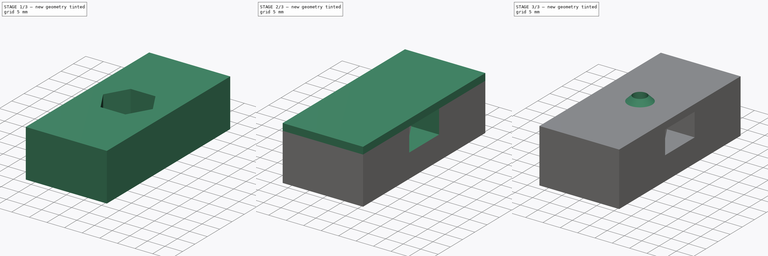
[diagram: build sequence overview — one tinted view per stage of 3, left to right]
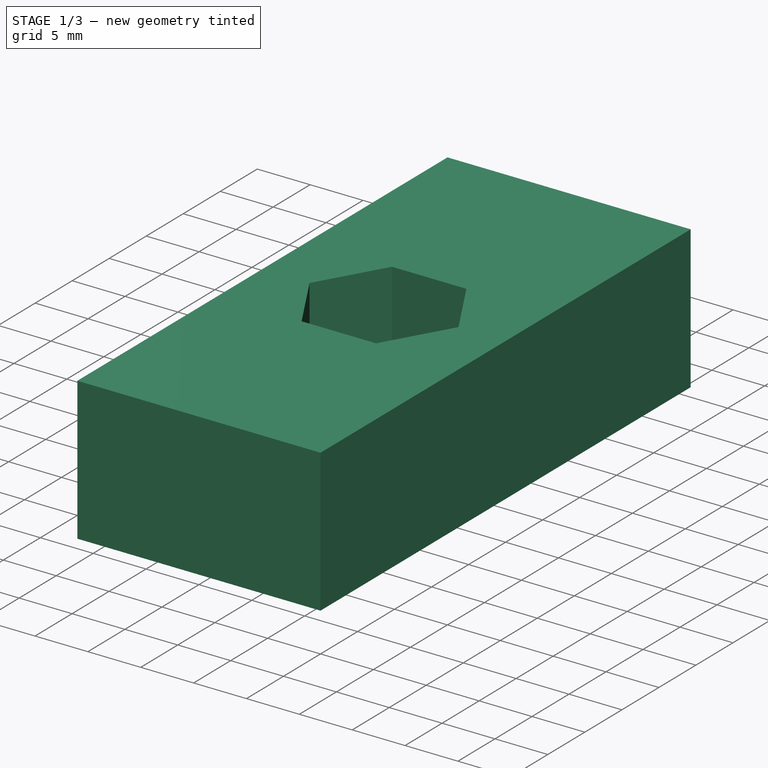
[diagram: stage 1 of 3 — iso view after this stage's code; geometry added in this stage tinted green]
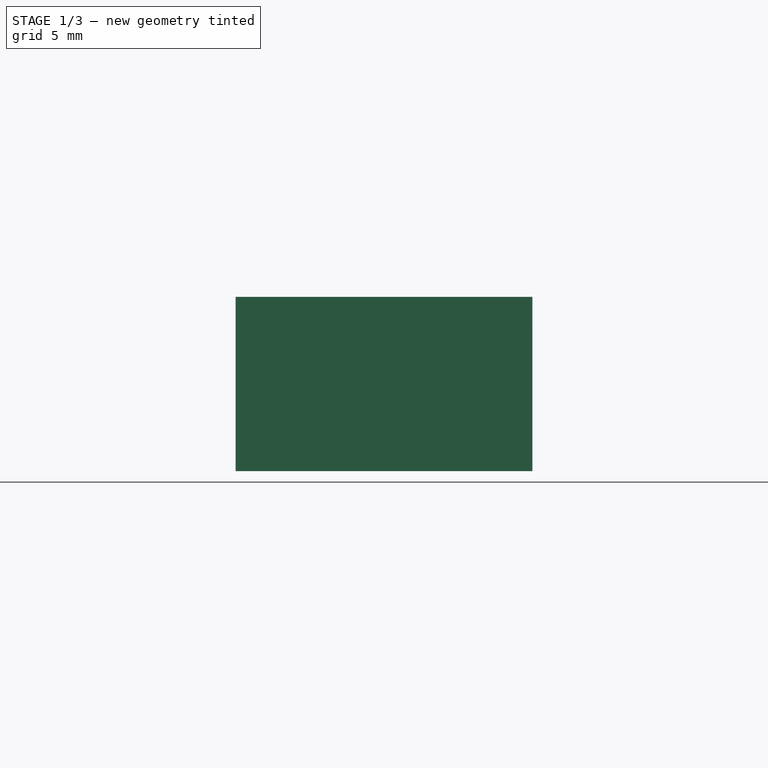
[diagram: stage 1 of 3 — front view after this stage's code; geometry added in this stage tinted green]
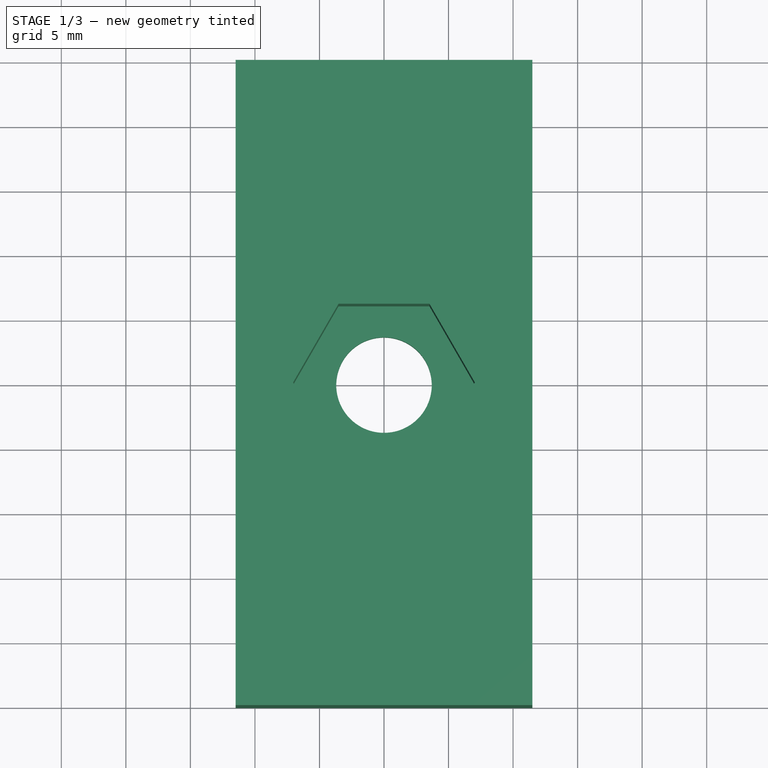
[diagram: stage 1 of 3 — top view after this stage's code; geometry added in this stage tinted green]
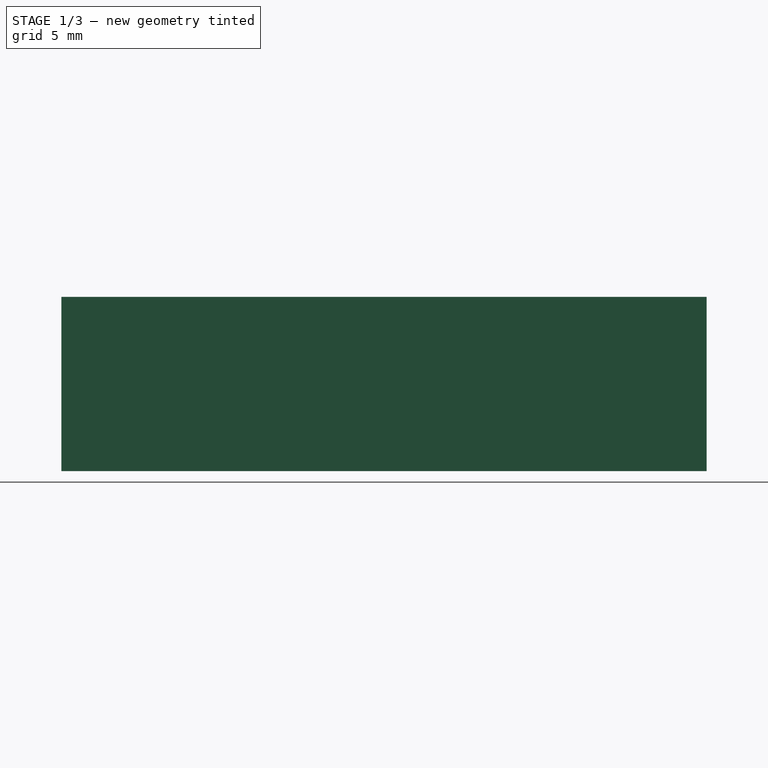
[diagram: stage 1 of 3 — right view after this stage's code; geometry added in this stage tinted green]
FCSTD DOCUMENT  (FreeCAD 0.15R4671 (Git))
Label: boxmount
License: All rights reserved
LicenseURL: http://en.wikipedia.org/wiki/All_rights_reserved
objects: Sketcher::SketchObject×8, PartDesign::Pocket×4, PartDesign::Pad×2, PartDesign::Revolution×1, PartDesign::Groove×1
note: 24 computed .brp shape members not serialized (recipe doc carries the construction recipe); baked Part::Feature solids carry a one-line shape summary decoded from their .brp

FEATURE [Sketcher::SketchObject] Sketch
  sketch-geometry (4):
    g0: LineSegment StartX=-11.5 StartY=25 StartZ=0 EndX=11.5 EndY=25 EndZ=0
    g1: LineSegment StartX=11.5 StartY=25 StartZ=0 EndX=11.5 EndY=-25 EndZ=0
    g2: LineSegment StartX=11.5 StartY=-25 StartZ=0 EndX=-11.5 EndY=-25 EndZ=0
    g3: LineSegment StartX=-11.5 StartY=-25 StartZ=0 EndX=-11.5 EndY=25 EndZ=0
  constraints (11):
    c: Coincident(g0,g1)
    c: Coincident(g1,g2)
    c: Coincident(g2,g3)
    c: Coincident(g3,g0)
    c: Horizontal(g0)
    c: Horizontal(g2)
    c: Vertical(g1)
    c: Vertical(g3)
    c: Symmetric(g0,g1,g-1)
    c: DistanceX(g0) = 23
    c: DistanceY(g1) = -50
FEATURE [PartDesign::Pad] Pad
  Length = 13.5
  Length2 = 100
  Sketch = -> Sketch
  Type = 0
FEATURE [Sketcher::SketchObject] Sketch001
  Placement = pos=(0,0,13.5) rot=(0,0,1;0rad)
  Support = -> Pad [Face6]
  sketch-geometry (1):
    g0: Circle CenterX=0 CenterY=0 CenterZ=0 NormalX=0 NormalY=0 NormalZ=1 Radius=3.7
  constraints (2):
    c: Coincident(g0,g-1)
    c: Radius(g0) = 3.7
FEATURE [PartDesign::Pocket] Pocket
  Length = 5
  Sketch = -> Sketch001
  Type = 1
FEATURE [Sketcher::SketchObject] Sketch002
  Placement = pos=(0,0,13.5) rot=(0,0,1;0rad)
  Support = -> Pocket [Face5]
  sketch-geometry (7):
    g0: LineSegment StartX=3.52184 StartY=-6.1 StartZ=0 EndX=7.04367 EndY=1e-12 EndZ=0
    g1: LineSegment StartX=7.04367 StartY=1e-12 StartZ=0 EndX=3.52184 EndY=6.1 EndZ=0
    g2: LineSegment StartX=3.52184 StartY=6.1 StartZ=0 EndX=-3.52184 EndY=6.1 EndZ=0
    g3: LineSegment StartX=-3.52184 StartY=6.1 StartZ=0 EndX=-7.04367 EndY=1e-12 EndZ=0
    g4: LineSegment StartX=-7.04367 StartY=1e-12 StartZ=0 EndX=-3.52184 EndY=-6.1 EndZ=0
    g5: LineSegment StartX=-3.52184 StartY=-6.1 StartZ=0 EndX=3.52184 EndY=-6.1 EndZ=0
    g6: Circle [constr] CenterX=0 CenterY=0 CenterZ=0 NormalX=0 NormalY=0 NormalZ=1 Radius=7.04367
  constraints (17):
    c: Coincident(g0,g1)
    c: Coincident(g1,g2)
    c: Coincident(g2,g3)
    c: Coincident(g3,g4)
    c: Coincident(g4,g5)
    c: Coincident(g5,g0)
    c: Equal(g0, g1-g5) x5
    c: PointOnObject(g0,g6)
    c: PointOnObject(g1,g6)
    c: PointOnObject(g2,g6)
    c: PointOnObject(g3,g6)
    c: PointOnObject(g4,g6)
    c: PointOnObject(g5,g6)
    c: Coincident(g3,g-1)
    c: Coincident(g6,g-1)
    c: Horizontal(g2)
    c: DistanceY(g2,g4) = -12.2
FEATURE [PartDesign::Pocket] Pocket001
  Length = 11.5
  Sketch = -> Sketch002
  Type = 0
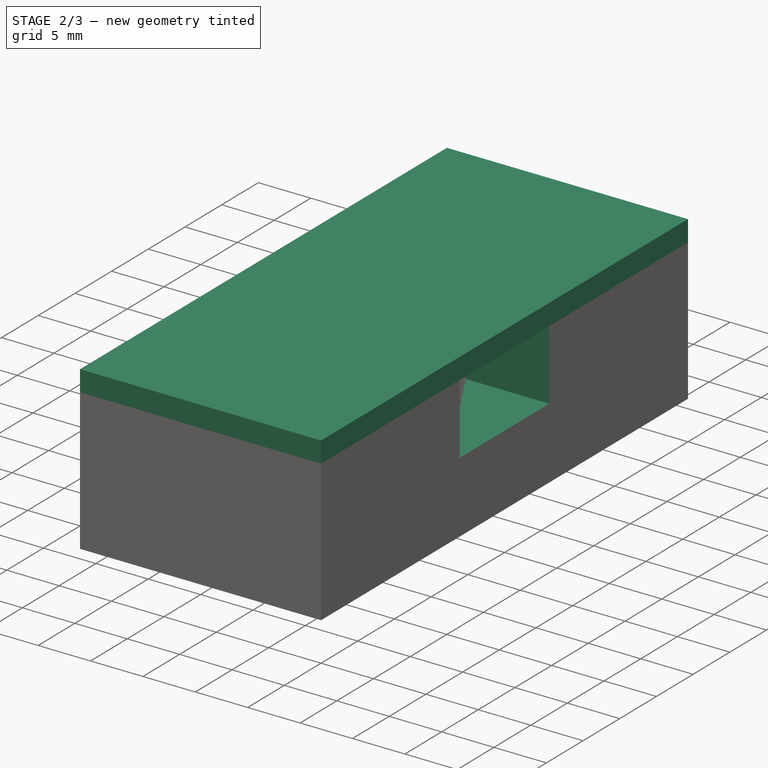
[diagram: stage 2 of 3 — iso view after this stage's code; geometry added in this stage tinted green]
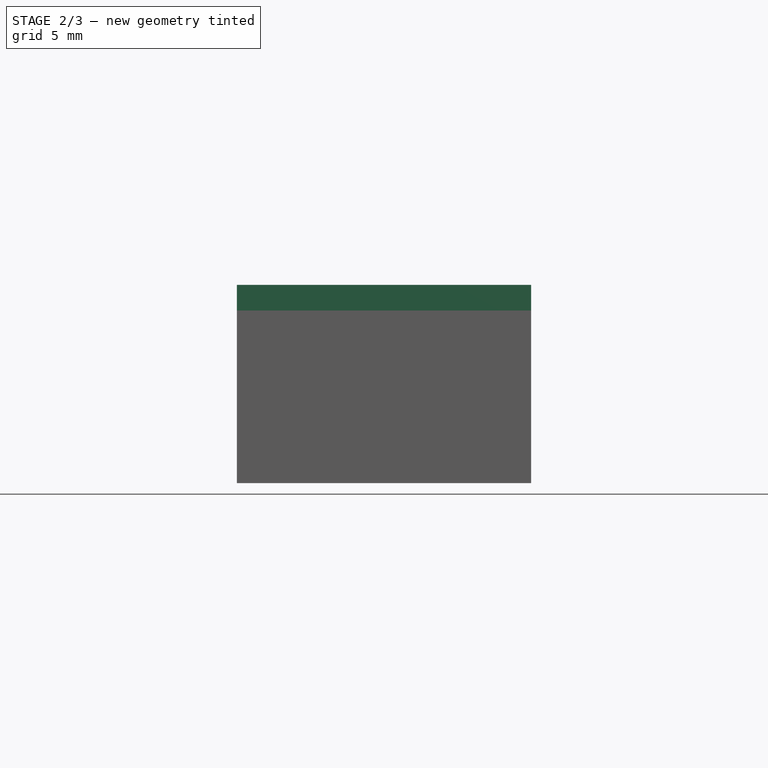
[diagram: stage 2 of 3 — front view after this stage's code; geometry added in this stage tinted green]
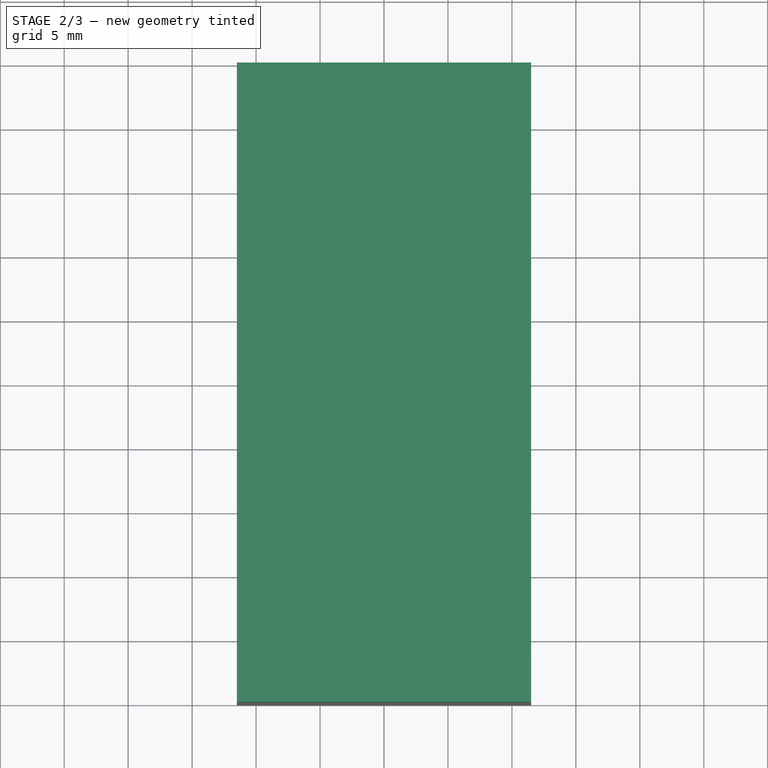
[diagram: stage 2 of 3 — top view after this stage's code; geometry added in this stage tinted green]
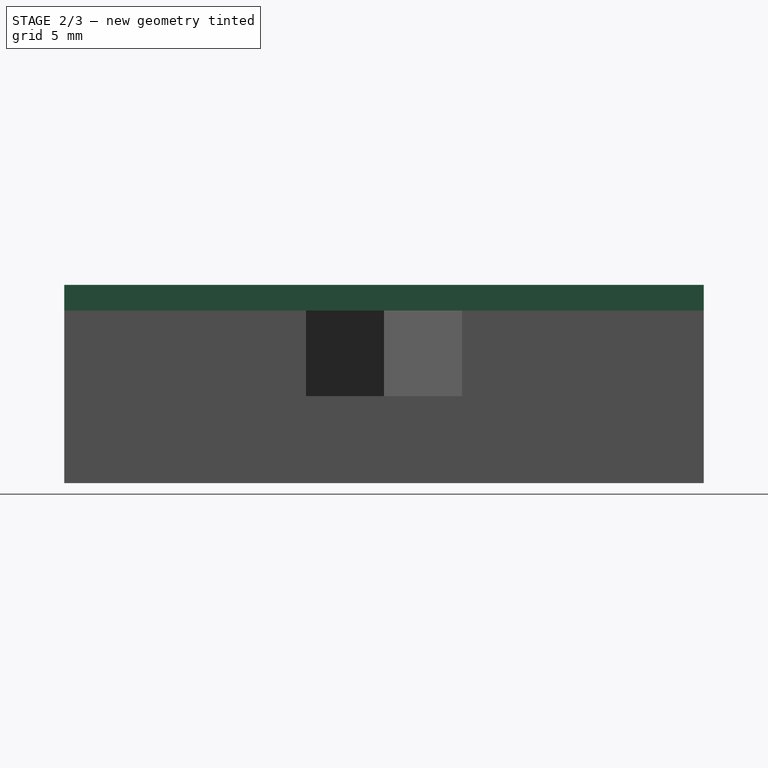
[diagram: stage 2 of 3 — right view after this stage's code; geometry added in this stage tinted green]
FEATURE [Sketcher::SketchObject] Sketch003
  ExternalGeometry = -> [Pocket001]
  Placement = pos=(0,0,13.5) rot=(0,0,1;0rad)
  Support = -> Pocket001 [Face5]
  sketch-geometry (4):
    g0: LineSegment StartX=-3.52184 StartY=-6.1 StartZ=0 EndX=11.5 EndY=-6.1 EndZ=0
    g1: LineSegment StartX=11.5 StartY=-6.1 StartZ=0 EndX=11.5 EndY=6.1 EndZ=0
    g2: LineSegment StartX=11.5 StartY=6.1 StartZ=0 EndX=-3.52184 EndY=6.1 EndZ=0
    g3: LineSegment StartX=-3.52184 StartY=6.1 StartZ=0 EndX=-3.52184 EndY=-6.1 EndZ=0
  constraints (11):
    c: Coincident(g0,g1)
    c: Coincident(g1,g2)
    c: Coincident(g2,g3)
    c: Coincident(g3,g0)
    c: Horizontal(g0)
    c: Horizontal(g2)
    c: Vertical(g1)
    c: Vertical(g3)
    c: Coincident(g0,g-3)
    c: PointOnObject(g1,g-5)
    c: DistanceY(g1,g-4) = 0
FEATURE [PartDesign::Pocket] Pocket002
  Length = 6.7
  Sketch = -> Sketch003
  Type = 0
FEATURE [Sketcher::SketchObject] Sketch004
  ExternalGeometry = -> [Pocket002]
  Placement = pos=(0,0,13.5) rot=(0,0,1;0rad)
  Support = -> Pocket002 [Face5]
  sketch-geometry (4):
    g0: LineSegment StartX=-11.5 StartY=25 StartZ=0 EndX=11.5 EndY=25 EndZ=0
    g1: LineSegment StartX=11.5 StartY=25 StartZ=0 EndX=11.5 EndY=-25 EndZ=0
    g2: LineSegment StartX=11.5 StartY=-25 StartZ=0 EndX=-11.5 EndY=-25 EndZ=0
    g3: LineSegment StartX=-11.5 StartY=-25 StartZ=0 EndX=-11.5 EndY=25 EndZ=0
  constraints (10):
    c: Coincident(g0,g1)
    c: Coincident(g1,g2)
    c: Coincident(g2,g3)
    c: Coincident(g3,g0)
    c: Horizontal(g0)
    c: Horizontal(g2)
    c: Vertical(g1)
    c: Vertical(g3)
    c: Coincident(g0,g-3)
    c: Coincident(g1,g-4)
FEATURE [PartDesign::Pad] Pad001
  Length = 2
  Length2 = 100
  Sketch = -> Sketch004
  Type = 0
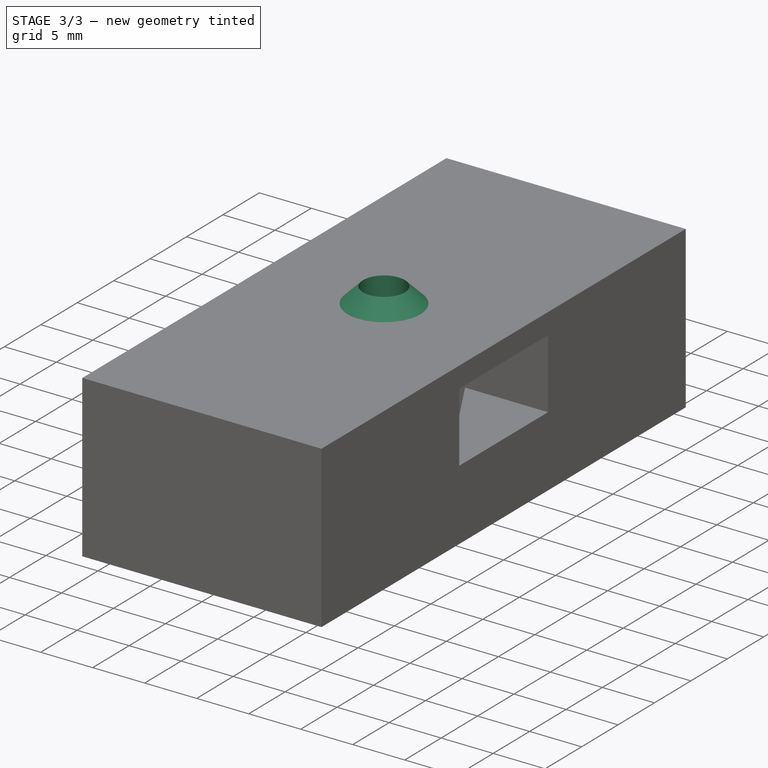
[diagram: stage 3 of 3 — iso view after this stage's code; geometry added in this stage tinted green]
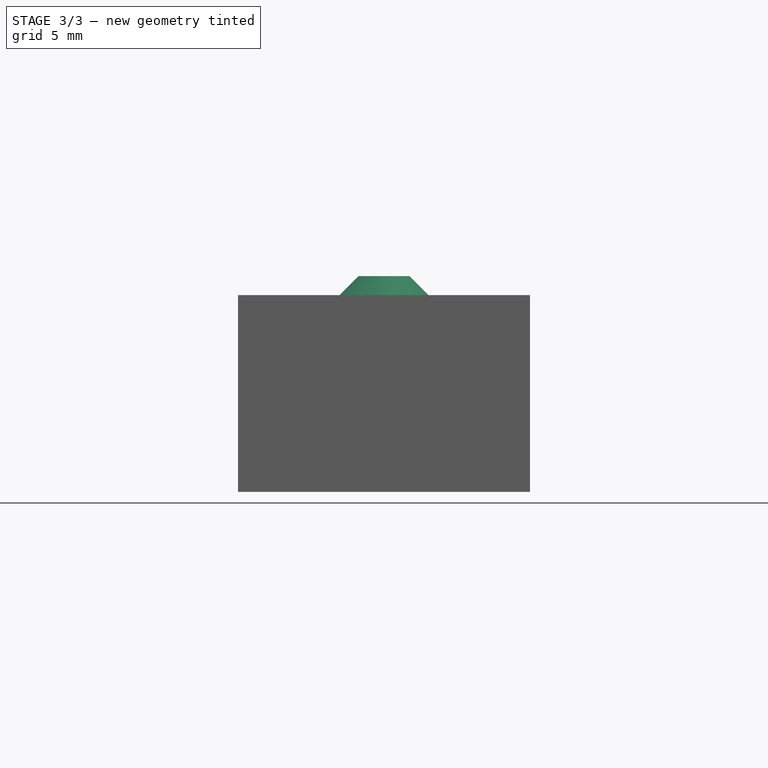
[diagram: stage 3 of 3 — front view after this stage's code; geometry added in this stage tinted green]
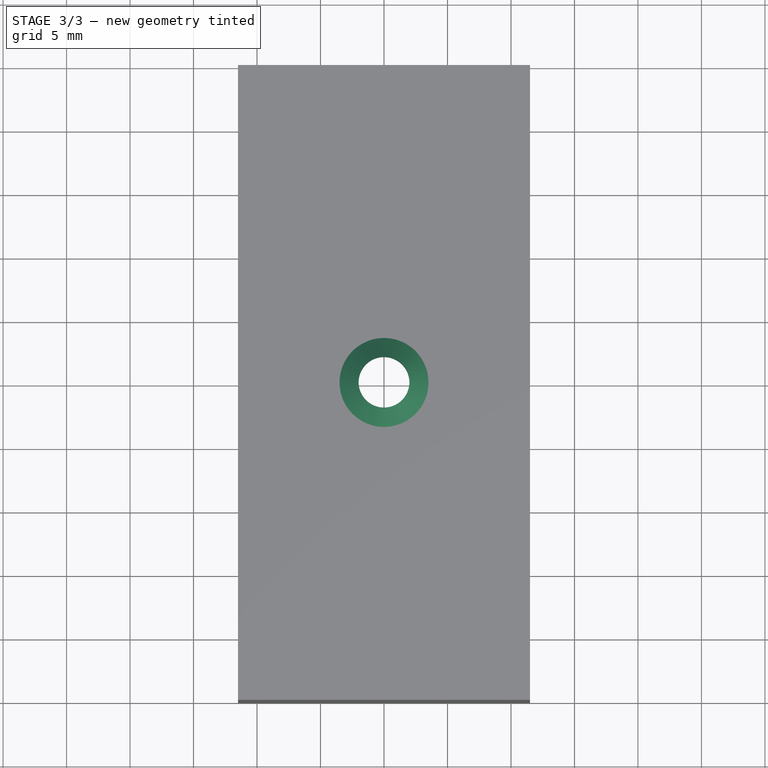
[diagram: stage 3 of 3 — top view after this stage's code; geometry added in this stage tinted green]
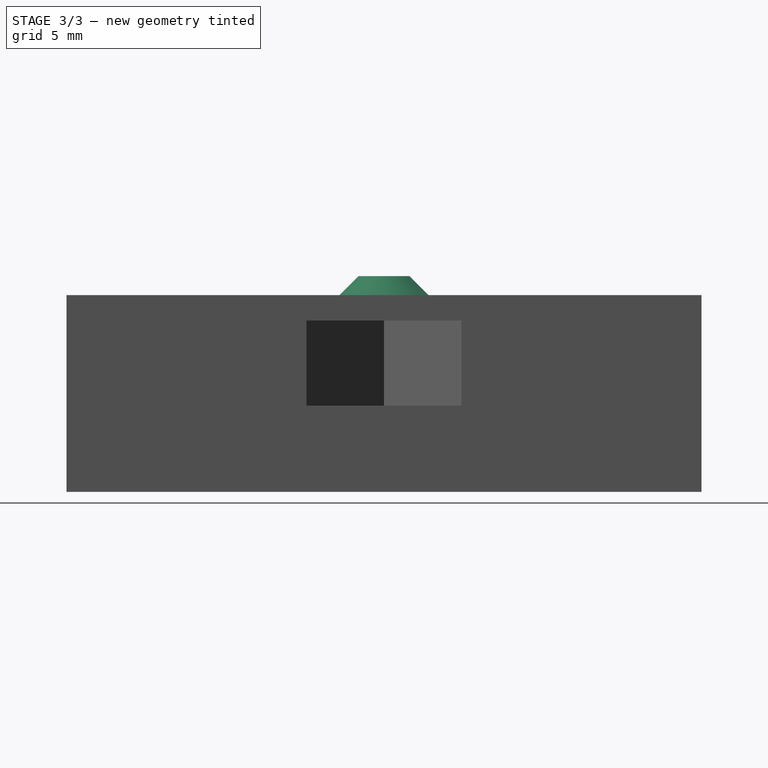
[diagram: stage 3 of 3 — right view after this stage's code; geometry added in this stage tinted green]
FEATURE [Sketcher::SketchObject] Sketch005
  Placement = pos=(0,0,15.5) rot=(0,0,1;0rad)
  Support = -> Pad001 [Face1]
  sketch-geometry (4):
    g0: LineSegment StartX=0 StartY=0 StartZ=0 EndX=1 EndY=0 EndZ=0
    g1: LineSegment StartX=1 StartY=0 StartZ=0 EndX=1 EndY=-1 EndZ=0
    g2: LineSegment StartX=1 StartY=-1 StartZ=0 EndX=0 EndY=-1 EndZ=0
    g3: LineSegment StartX=0 StartY=-1 StartZ=0 EndX=0 EndY=0 EndZ=0
  constraints (11):
    c: Coincident(g0,g1)
    c: Coincident(g1,g2)
    c: Coincident(g2,g3)
    c: Coincident(g3,g0)
    c: Horizontal(g0)
    c: Horizontal(g2)
    c: Vertical(g1)
    c: Vertical(g3)
    c: Coincident(g0,g-1)
    c: DistanceX(g2) = -1
    c: DistanceY(g1) = -1
FEATURE [PartDesign::Pocket] Pocket003
  Length = 3
  Sketch = -> Sketch005
  Type = 0
FEATURE [Sketcher::SketchObject] Sketch006
  ExternalGeometry = -> [Pocket003]
  Placement = pos=(0,0,0) rot=(1,0,0;1.5708rad)
  Support = -> Pocket003 [Face9]
  sketch-geometry (4):
    g0: LineSegment StartX=-3.5 StartY=13.5 StartZ=0 EndX=-2 EndY=15 EndZ=0
    g1: LineSegment StartX=-2 StartY=15 StartZ=0 EndX=-2 EndY=17 EndZ=0
    g2: LineSegment StartX=-2 StartY=17 StartZ=0 EndX=-3.5 EndY=15.5 EndZ=0
    g3: LineSegment StartX=-3.5 StartY=15.5 StartZ=0 EndX=-3.5 EndY=13.5 EndZ=0
  constraints (12):
    c: Coincident(g0,g1)
    c: Vertical(g1)
    c: Coincident(g1,g2)
    c: Coincident(g2,g3)
    c: Coincident(g3,g0)
    c: Vertical(g3)
    c: DistanceX(g0,g-3) = 2
    c: DistanceX(g0,g-3) = 3.5
    c: Angle(g0) = 0.785398
    c: Angle(g2) = -2.35619
    c: DistanceY(g0,g-3) = 0
    c: DistanceY(g3) = -2
FEATURE [PartDesign::Revolution] Revolution
  Angle = 360
  Axis = (0,0,1)
  Base = (0,0,0)
  ReferenceAxis = -> Sketch006 [V_Axis]
  Sketch = -> Sketch006
FEATURE [Sketcher::SketchObject] Sketch007
  ExternalGeometry = -> [Revolution]
  Placement = pos=(0,0,0) rot=(0.57735,0.57735,0.57735;2.0944rad)
  Support = -> Revolution [Face19]
  sketch-geometry (6):
    g0: LineSegment StartX=0 StartY=17.6373 StartZ=0 EndX=-2 EndY=17.6373 EndZ=0
    g1: LineSegment StartX=-2 StartY=17.6373 StartZ=0 EndX=-2 EndY=15 EndZ=0
    g2: LineSegment StartX=-2 StartY=15 StartZ=0 EndX=-3.5 EndY=13.5 EndZ=0
    g3: LineSegment StartX=-3.5 StartY=13.5 StartZ=0 EndX=-3.5 EndY=11.6613 EndZ=0
    g4: LineSegment StartX=-3.5 StartY=11.6613 StartZ=0 EndX=0 EndY=11.6613 EndZ=0
    g5: LineSegment StartX=0 StartY=11.6613 StartZ=0 EndX=0 EndY=17.6373 EndZ=0
  constraints (17):
    c: PointOnObject(g0,g-2)
    c: Horizontal(g0)
    c: Coincident(g0,g1)
    c: Vertical(g1)
    c: Coincident(g1,g2)
    c: Coincident(g2,g3)
    c: Vertical(g3)
    c: Coincident(g3,g4)
    c: PointOnObject(g4,g-2)
    c: Coincident(g4,g5)
    c: Vertical(g5)
    c: Coincident(g5,g0)
    c: DistanceY(g2,g-3) = 0
    c: DistanceX(g1,g-3) = 2
    c: Angle(g2) = -2.35619
    c: DistanceX(g2,g-3) = 3.5
    c: Horizontal(g4)
FEATURE [PartDesign::Groove] Groove
  Angle = 360
  Axis = (0,0,1)
  Base = (0,0,0)
  ReferenceAxis = -> Sketch007 [V_Axis]
  Reversed = true
  Sketch = -> Sketch007
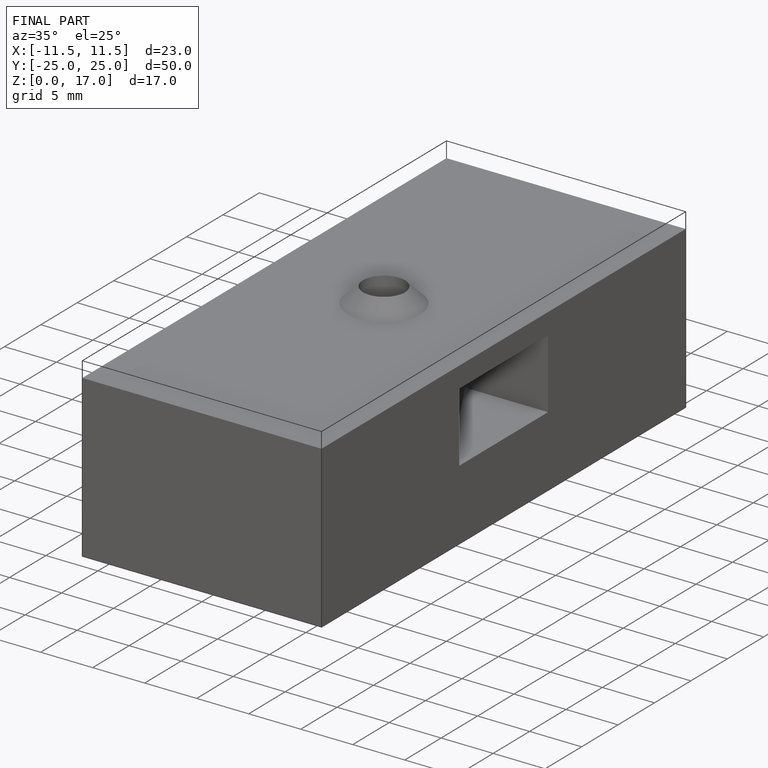
[diagram: finished part — iso view with bounding-box wireframe]
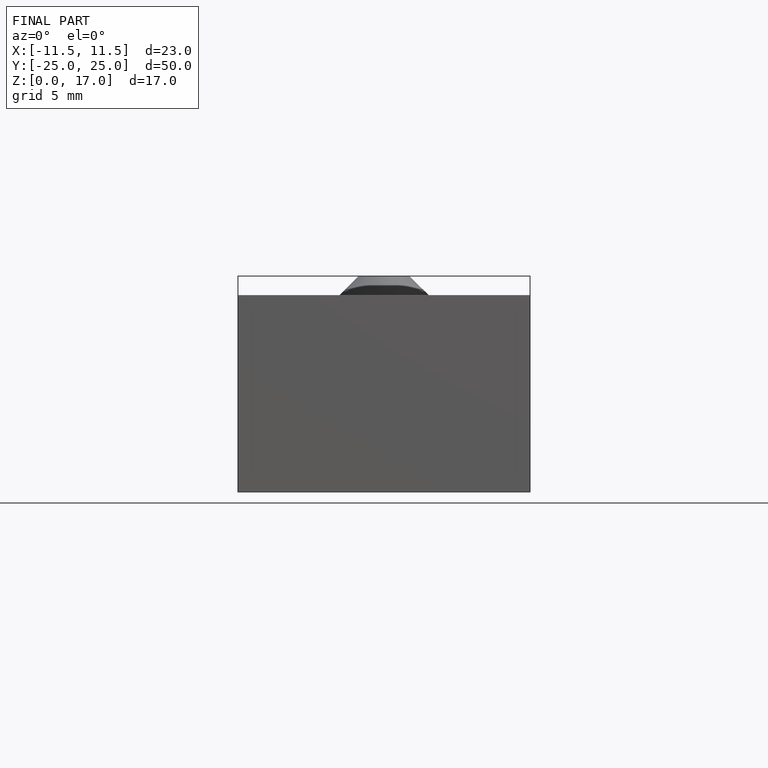
[diagram: finished part — front view with bounding-box wireframe]
